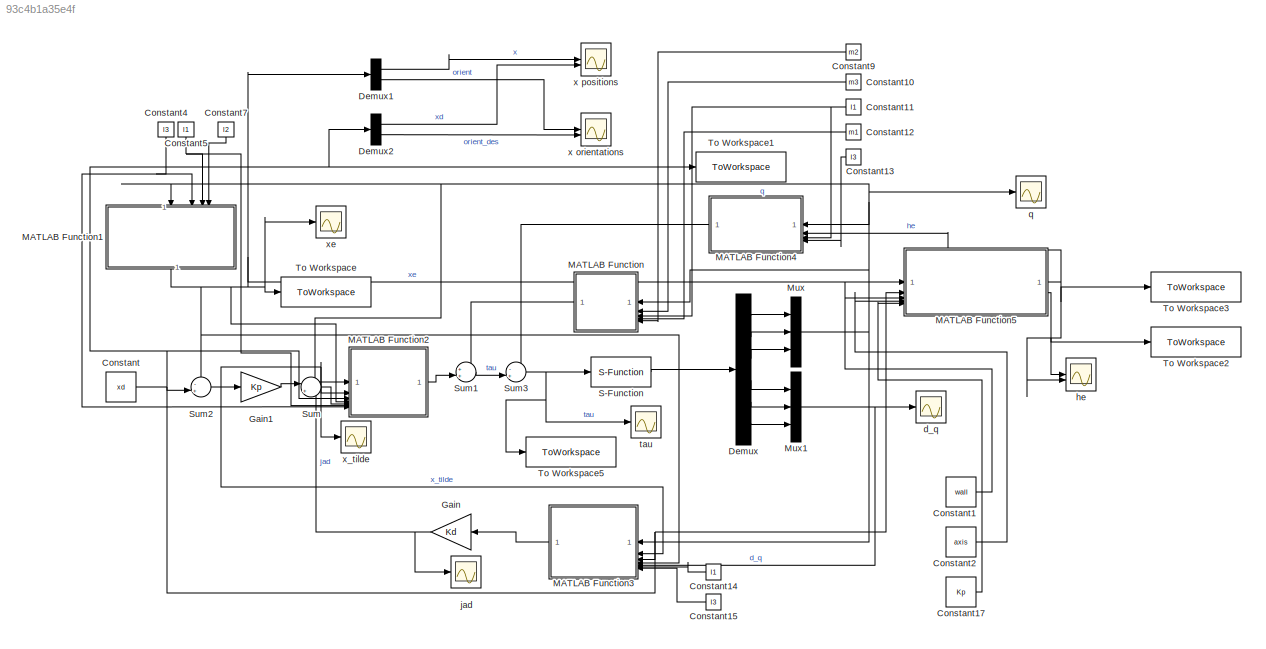
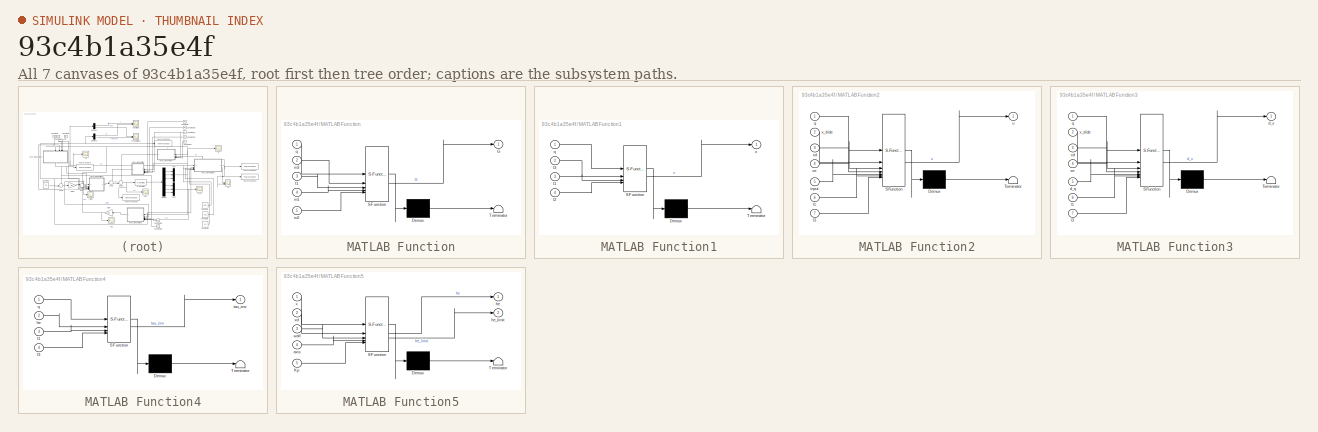
[diagram: thumbnail index - all 7 canvases of the model, root first then tree order]
MODEL slx_93c4b1a35e4f
KIND model
CONFIG AbsTol = auto
CONFIG EnableMultiTasking = off
CONFIG FixedStep = auto
CONFIG MaxStep = auto
CONFIG MinStep = auto
CONFIG RelTol = 1e-3
CONFIG SampleTimeConstraint = Unconstrained
CONFIG SolverName = VariableStepAuto
CONFIG StartTime = 0.0
CONFIG StopTime = 10
BLOCK [Constant] Constant
  Value = xd
BLOCK [Constant] Constant1
  Value = wall
BLOCK [Constant] Constant10
  Value = m3
BLOCK [Constant] Constant11
  Value = l1
BLOCK [Constant] Constant12
  Value = m1
BLOCK [Constant] Constant13
  Value = l3
BLOCK [Constant] Constant14
  Value = l1
BLOCK [Constant] Constant15
  Value = l3
BLOCK [Constant] Constant17
  Value = Kp
BLOCK [Constant] Constant2
  Value = axis
BLOCK [Constant] Constant4
  NameLocation = left
  Value = l3
BLOCK [Constant] Constant5
  NameLocation = left
  Value = l1
BLOCK [Constant] Constant7
  NameLocation = left
  Value = l2
BLOCK [Constant] Constant9
  Value = m2
BLOCK [Demux] Demux
  Outputs = 6
BLOCK [Demux] Demux1
  Outputs = 2
BLOCK [Demux] Demux2
  Outputs = 2
BLOCK [Gain] Gain
  Gain = Kd
  Multiplication = Matrix(K*u)
BLOCK [Gain] Gain1
  Gain = Kp
  Multiplication = Matrix(K*u)
BLOCK [SubSystem] MATLAB Function
  ErrorFcn = Stateflow.Translate.translate
  PermitHierarchicalResolution = ExplicitOnly
  SFBlockType = MATLAB Function
  TreatAsAtomicUnit = on
BLOCK [Demux] MATLAB Function/ Demux 
  Outputs = 1
BLOCK [S-Function] MATLAB Function/ SFunction 
  EnableBusSupport = on
  FunctionName = sf_sfun
  PortCounts = [5 2]
  SFcnIsStateOwnerBlock = off
  SFunctionDeploymentMode = off
  Tag = Stateflow S-Function 2
BLOCK [Terminator] MATLAB Function/ Terminator 
BLOCK [Outport] MATLAB Function/G
BLOCK [Inport] MATLAB Function/l1
  Port = 3
BLOCK [Inport] MATLAB Function/m1
  Port = 4
BLOCK [Inport] MATLAB Function/m2
  Port = 5
BLOCK [Inport] MATLAB Function/m3
  Port = 2
BLOCK [Inport] MATLAB Function/q
BLOCK [SubSystem] MATLAB Function1
  ErrorFcn = Stateflow.Translate.translate
  NameLocation = right
  PermitHierarchicalResolution = ExplicitOnly
  SFBlockType = MATLAB Function
  TreatAsAtomicUnit = on
BLOCK [Demux] MATLAB Function1/ Demux 
  Outputs = 1
BLOCK [S-Function] MATLAB Function1/ SFunction 
  EnableBusSupport = on
  FunctionName = sf_sfun
  PortCounts = [4 2]
  SFcnIsStateOwnerBlock = off
  SFunctionDeploymentMode = off
  Tag = Stateflow S-Function 1
BLOCK [Terminator] MATLAB Function1/ Terminator 
BLOCK [Inport] MATLAB Function1/l1
  Port = 3
BLOCK [Inport] MATLAB Function1/l2
  Port = 4
BLOCK [Inport] MATLAB Function1/l3
  Port = 2
BLOCK [Inport] MATLAB Function1/q
BLOCK [Outport] MATLAB Function1/x
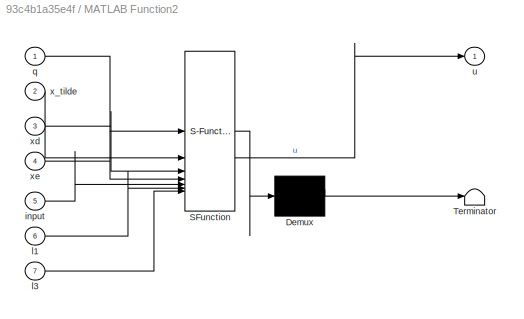
BLOCK [SubSystem] MATLAB Function2
  ErrorFcn = Stateflow.Translate.translate
  NameLocation = top
  PermitHierarchicalResolution = ExplicitOnly
  SFBlockType = MATLAB Function
  TreatAsAtomicUnit = on
BLOCK [Demux] MATLAB Function2/ Demux 
  Outputs = 1
BLOCK [S-Function] MATLAB Function2/ SFunction 
  EnableBusSupport = on
  FunctionName = sf_sfun
  PortCounts = [7 2]
  SFcnIsStateOwnerBlock = off
  SFunctionDeploymentMode = off
  Tag = Stateflow S-Function 3
BLOCK [Terminator] MATLAB Function2/ Terminator 
BLOCK [Inport] MATLAB Function2/input
  Port = 5
BLOCK [Inport] MATLAB Function2/l1
  Port = 6
BLOCK [Inport] MATLAB Function2/l3
  Port = 7
BLOCK [Inport] MATLAB Function2/q
BLOCK [Outport] MATLAB Function2/u
BLOCK [Inport] MATLAB Function2/x_tilde
  Port = 2
BLOCK [Inport] MATLAB Function2/xd
  Port = 3
BLOCK [Inport] MATLAB Function2/xe
  Port = 4
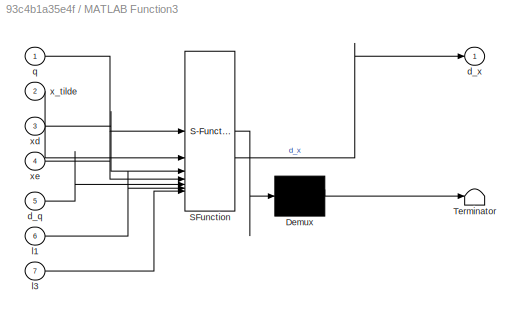
BLOCK [SubSystem] MATLAB Function3
  ErrorFcn = Stateflow.Translate.translate
  NameLocation = top
  PermitHierarchicalResolution = ExplicitOnly
  SFBlockType = MATLAB Function
  TreatAsAtomicUnit = on
BLOCK [Demux] MATLAB Function3/ Demux 
  Outputs = 1
BLOCK [S-Function] MATLAB Function3/ SFunction 
  EnableBusSupport = on
  FunctionName = sf_sfun
  PortCounts = [7 2]
  SFcnIsStateOwnerBlock = off
  SFunctionDeploymentMode = off
  Tag = Stateflow S-Function 4
BLOCK [Terminator] MATLAB Function3/ Terminator 
BLOCK [Inport] MATLAB Function3/d_q
  Port = 5
BLOCK [Outport] MATLAB Function3/d_x
BLOCK [Inport] MATLAB Function3/l1
  Port = 6
BLOCK [Inport] MATLAB Function3/l3
  Port = 7
BLOCK [Inport] MATLAB Function3/q
BLOCK [Inport] MATLAB Function3/x_tilde
  Port = 2
BLOCK [Inport] MATLAB Function3/xd
  Port = 3
BLOCK [Inport] MATLAB Function3/xe
  Port = 4
BLOCK [SubSystem] MATLAB Function4
  ErrorFcn = Stateflow.Translate.translate
  PermitHierarchicalResolution = ExplicitOnly
  SFBlockType = MATLAB Function
  TreatAsAtomicUnit = on
BLOCK [Demux] MATLAB Function4/ Demux 
  Outputs = 1
BLOCK [S-Function] MATLAB Function4/ SFunction 
  EnableBusSupport = on
  FunctionName = sf_sfun
  PortCounts = [4 2]
  SFcnIsStateOwnerBlock = off
  SFunctionDeploymentMode = off
  Tag = Stateflow S-Function 5
BLOCK [Terminator] MATLAB Function4/ Terminator 
BLOCK [Inport] MATLAB Function4/he
  Port = 2
BLOCK [Inport] MATLAB Function4/l1
  Port = 3
BLOCK [Inport] MATLAB Function4/l3
  Port = 4
BLOCK [Inport] MATLAB Function4/q
BLOCK [Outport] MATLAB Function4/tau_env
BLOCK [SubSystem] MATLAB Function5
  ErrorFcn = Stateflow.Translate.translate
  PermitHierarchicalResolution = ExplicitOnly
  SFBlockType = MATLAB Function
  TreatAsAtomicUnit = on
BLOCK [Demux] MATLAB Function5/ Demux 
  Outputs = 1
BLOCK [S-Function] MATLAB Function5/ SFunction 
  EnableBusSupport = on
  FunctionName = sf_sfun
  PortCounts = [5 3]
  SFcnIsStateOwnerBlock = off
  SFunctionDeploymentMode = off
  Tag = Stateflow S-Function 6
BLOCK [Terminator] MATLAB Function5/ Terminator 
BLOCK [Inport] MATLAB Function5/Kp
  Port = 5
BLOCK [Inport] MATLAB Function5/axis
  Port = 4
BLOCK [Outport] MATLAB Function5/he
BLOCK [Outport] MATLAB Function5/he_limit
  Port = 2
BLOCK [Inport] MATLAB Function5/wall
  Port = 3
BLOCK [Inport] MATLAB Function5/x
BLOCK [Inport] MATLAB Function5/xd
  Port = 2
BLOCK [Mux] Mux
  DisplayOption = bar
  Inputs = 3
BLOCK [Mux] Mux1
  DisplayOption = bar
  Inputs = 3
BLOCK [S-Function] S-Function
  EnableBusSupport = off
  FunctionName = Manipulator
  SFcnIsStateOwnerBlock = off
  SFunctionDeploymentMode = off
BLOCK [Sum] Sum
  Inputs = |+-
BLOCK [Sum] Sum1
  Inputs = ++|
BLOCK [Sum] Sum2
  Inputs = -+|
BLOCK [Sum] Sum3
  Inputs = -+|
BLOCK [ToWorkspace] To Workspace
  FixptAsFi = on
  MaxDataPoints = inf
  SampleTime = -1
  SaveFormat = Timeseries
  VariableName = x
BLOCK [ToWorkspace] To Workspace1
  FixptAsFi = on
  MaxDataPoints = inf
  SampleTime = -1
  SaveFormat = Timeseries
  VariableName = xd
BLOCK [ToWorkspace] To Workspace2
  FixptAsFi = on
  MaxDataPoints = inf
  SampleTime = -1
  SaveFormat = Timeseries
  VariableName = he_limit
BLOCK [ToWorkspace] To Workspace3
  FixptAsFi = on
  MaxDataPoints = inf
  SampleTime = -1
  SaveFormat = Timeseries
  VariableName = he
BLOCK [ToWorkspace] To Workspace5
  FixptAsFi = on
  MaxDataPoints = inf
  SampleTime = -1
  SaveFormat = Timeseries
  VariableName = tau
BLOCK [Scope] d_q
  Floating = off
  NumInputPorts = 1
  ScopeSpecificationString = Simulink.scopes.TimeScopeBlockCfg('CurrentConfiguration', extmgr.ConfigurationSet(extmgr.Configuration('Core','General UI',true),extmgr.Configuration('Core','Source UI',true),extmgr.Configuration('Sources','WiredSimulink',true),extmgr.Configuration('Visuals','Time Domain',true,'SerializedDisplays',{struct('MinYLimReal','-2.09698','MaxYLimReal','0.23673','YLabelReal','','MinYLimMag','0.00000','MaxY...<+1395ch>
BLOCK [Scope] he
  Floating = off
  NumInputPorts = 2
  ScopeSpecificationString = Simulink.scopes.TimeScopeBlockCfg('CurrentConfiguration', extmgr.ConfigurationSet(extmgr.Configuration('Core','General UI',true),extmgr.Configuration('Core','Source UI',true),extmgr.Configuration('Sources','WiredSimulink',true,'DataLoggingVariableName','ScopeData1'),extmgr.Configuration('Visuals','Time Domain',true,'SerializedDisplays',{struct('MinYLimReal','-1.16882','MaxYLimReal','10.51936','YLa...<+1944ch>
BLOCK [Scope] jad
  Floating = off
  NumInputPorts = 1
  ScopeSpecificationString = Simulink.scopes.TimeScopeBlockCfg('CurrentConfiguration', extmgr.ConfigurationSet(extmgr.Configuration('Core','General UI',true),extmgr.Configuration('Core','Source UI',true),extmgr.Configuration('Sources','WiredSimulink',true,'DataLoggingVariableName','ScopeData1'),extmgr.Configuration('Visuals','Time Domain',true,'SerializedDisplays',{struct('MinYLimReal','-63.44966','MaxYLimReal','72.30807','YL...<+1658ch>
BLOCK [Scope] q
  Floating = off
  NumInputPorts = 1
  ScopeSpecificationString = Simulink.scopes.TimeScopeBlockCfg('CurrentConfiguration', extmgr.ConfigurationSet(extmgr.Configuration('Core','General UI',true),extmgr.Configuration('Core','Source UI',true),extmgr.Configuration('Sources','WiredSimulink',true,'DataLoggingVariableName','ScopeData1'),extmgr.Configuration('Visuals','Time Domain',true,'SerializedDisplays',{struct('MinYLimReal','-20.54658','MaxYLimReal','2.28526','YLa...<+1454ch>
BLOCK [Scope] tau
  Floating = off
  NumInputPorts = 1
  ScopeSpecificationString = Simulink.scopes.TimeScopeBlockCfg('CurrentConfiguration', extmgr.ConfigurationSet(extmgr.Configuration('Core','General UI',true),extmgr.Configuration('Core','Source UI',true),extmgr.Configuration('Sources','WiredSimulink',true,'DataLoggingVariableName','ScopeData3'),extmgr.Configuration('Visuals','Time Domain',true,'SerializedDisplays',{struct('MinYLimReal','-63.44966','MaxYLimReal','72.30807','YL...<+1598ch>
BLOCK [Scope] x orientations
  Floating = off
  NumInputPorts = 2
  ScopeSpecificationString = Simulink.scopes.TimeScopeBlockCfg('CurrentConfiguration', extmgr.ConfigurationSet(extmgr.Configuration('Core','General UI',true),extmgr.Configuration('Core','Source UI',true),extmgr.Configuration('Sources','WiredSimulink',true,'DataLoggingVariableName','ScopeData2'),extmgr.Configuration('Visuals','Time Domain',true,'SerializedDisplays',{struct('MinYLimReal','-3.33794','MaxYLimReal','-1.37445','YLa...<+1650ch>
BLOCK [Scope] x positions
  Floating = off
  NumInputPorts = 2
  ScopeSpecificationString = Simulink.scopes.TimeScopeBlockCfg('CurrentConfiguration', extmgr.ConfigurationSet(extmgr.Configuration('Core','General UI',true),extmgr.Configuration('Core','Source UI',true),extmgr.Configuration('Sources','WiredSimulink',true,'DataLoggingVariableName','ScopeData1'),extmgr.Configuration('Visuals','Time Domain',true,'SerializedDisplays',{struct('MinYLimReal','0.48639','MaxYLimReal','0.72277','YLabe...<+1625ch>
BLOCK [Scope] x_tilde
  Floating = off
  NumInputPorts = 1
  ScopeSpecificationString = Simulink.scopes.TimeScopeBlockCfg('CurrentConfiguration', extmgr.ConfigurationSet(extmgr.Configuration('Core','General UI',true),extmgr.Configuration('Core','Source UI',true),extmgr.Configuration('Sources','WiredSimulink',true,'DataLoggingVariableName','ScopeData1'),extmgr.Configuration('Visuals','Time Domain',true,'SerializedDisplays',{struct('MinYLimReal','-7.10509','MaxYLimReal','1.11393','YLab...<+1673ch>
BLOCK [Scope] xe
  Floating = off
  NumInputPorts = 1
  ScopeSpecificationString = Simulink.scopes.TimeScopeBlockCfg('CurrentConfiguration', extmgr.ConfigurationSet(extmgr.Configuration('Core','General UI',true),extmgr.Configuration('Core','Source UI',true),extmgr.Configuration('Sources','WiredSimulink',true,'DataLoggingVariableName','ScopeData2'),extmgr.Configuration('Visuals','Time Domain',true,'SerializedDisplays',{struct('MinYLimReal','-3.92699','MaxYLimReal','3.92699','YLab...<+1643ch>
LINE Constant10:1 -> MATLAB Function:2
NET Constant11:1 -> MATLAB Function4:3, MATLAB Function:3
LINE Constant12:1 -> MATLAB Function:4
LINE Constant13:1 -> MATLAB Function4:4
LINE Constant14:1 -> MATLAB Function3:6
LINE Constant15:1 -> MATLAB Function3:7
LINE Constant17:1 -> MATLAB Function5:5
LINE Constant1:1 -> MATLAB Function5:3
LINE Constant2:1 -> MATLAB Function5:4
NET Constant4:1 -> MATLAB Function1:2, MATLAB Function2:7
NET Constant5:1 -> MATLAB Function1:3, MATLAB Function2:6
LINE Constant7:1 -> MATLAB Function1:4
LINE Constant9:1 -> MATLAB Function:5
NET Constant:1 -> Demux2:1, MATLAB Function2:3, MATLAB Function3:3, MATLAB Function5:2, Sum2:2, To Workspace1:1
LINE Demux1:1 -> x positions:1
LINE Demux1:2 -> x orientations:1
LINE Demux2:1 -> x positions:2
LINE Demux2:2 -> x orientations:2
LINE Demux:1 -> Mux:1
LINE Demux:2 -> Mux:2
LINE Demux:3 -> Mux:3
LINE Demux:4 -> Mux1:1
LINE Demux:5 -> Mux1:2
LINE Demux:6 -> Mux1:3
LINE Gain1:1 -> Sum:1
NET Gain:1 -> Sum:2, jad:1
NET MATLAB Function1:1 -> Demux1:1, MATLAB Function2:4, MATLAB Function3:4, MATLAB Function5:1, Sum2:1, To Workspace:1, xe:1
LINE MATLAB Function2:1 -> Sum1:2
LINE MATLAB Function3:1 -> Gain:1
LINE MATLAB Function4:1 -> Sum3:1
NET MATLAB Function5:1 -> MATLAB Function4:2, To Workspace3:1, he:2
NET MATLAB Function5:2 -> To Workspace2:1, he:1
LINE MATLAB Function:1 -> Sum1:1
NET Mux1:1 -> MATLAB Function3:5, d_q:1
NET Mux:1 -> MATLAB Function1:1, MATLAB Function2:1, MATLAB Function3:1, MATLAB Function4:1, MATLAB Function:1, q:1
LINE S-Function:1 -> Demux:1
LINE Sum1:1 -> Sum3:2
NET Sum2:1 -> Gain1:1, MATLAB Function2:2, MATLAB Function3:2, x_tilde:1
NET Sum3:1 -> S-Function:1, To Workspace5:1, tau:1
LINE Sum:1 -> MATLAB Function2:5
note: NET lines group one-source signal fan-out (src -> all destinations, sorted); 1:1 wires keep LINE
CHART MATLAB Function1 states=1 transitions=1
  STATE_LABEL 'eML_blk_kernel()'
  STATE_LABEL 'SCRIPT:\nfunction x = Kin(q,l3,l1,l2)\n    x = Kinematics(q,l3,l1,l2);\nend'
CHART MATLAB Function states=1 transitions=1
  STATE_LABEL 'eML_blk_kernel()'
  STATE_LABEL 'SCRIPT:\nfunction G = Gravity(q,m3,l1,m1,m2)\n   G = G_Lagrangian(q,m3,l1,m1,m2);\nend\n'
CHART MATLAB Function2 states=1 transitions=1
  STATE_LABEL 'eML_blk_kernel()'
  STATE_LABEL "SCRIPT:\nfunction u = JadT(q, x_tilde, xd,xe, input,l1,l3)\n    Ja = getJad(q, x_tilde, xd, xe,l1,l3);\n    u = Ja' * input;\nend\n"
CHART MATLAB Function3 states=1 transitions=1
  STATE_LABEL 'eML_blk_kernel()'
  STATE_LABEL 'SCRIPT:\nfunction d_x = Jad(q, x_tilde, xd, xe, d_q, l1, l3)\n    Ja = getJad(q, x_tilde, xd, xe, l1, l3);\n    d_x = Ja * d_q;\nend'
CHART MATLAB Function4 states=1 transitions=1
  STATE_LABEL 'eML_blk_kernel()'
  STATE_LABEL "SCRIPT:\nfunction tau_env = JT(q, he,l1,l3)\n    tau_env = Jacobian(q,l1,l3)' * he;\nend"
CHART MATLAB Function5 states=1 transitions=1
  STATE_LABEL 'eML_blk_kernel()'
  STATE_LABEL 'SCRIPT:\nfunction [he, he_limit] = environment(x, xd,wall,axis,Kp)\n    K = 200*diag([1 1 1 1 1 1]); \n    if x(axis) >= wall \n\n        % set up the rest position frame\n        xr = zeros(6,1);\n        xr(axis) = wall;\n\n        xe = zeros(6,1);\n        xe(axis) = x(axis);\n\n        he = K * (xe - xr);\n        dx_rd = zeros(6,1);\n        dx_rd(axis) = xd(axis) - xr(axis);\n        % At the limit\n       ...<+119ch>'
CHART  states=0 transitions=0
CHART  states=0 transitions=0
CHART  states=0 transitions=0
CHART  states=0 transitions=0
CHART  states=0 transitions=0
CHART  states=0 transitions=0
